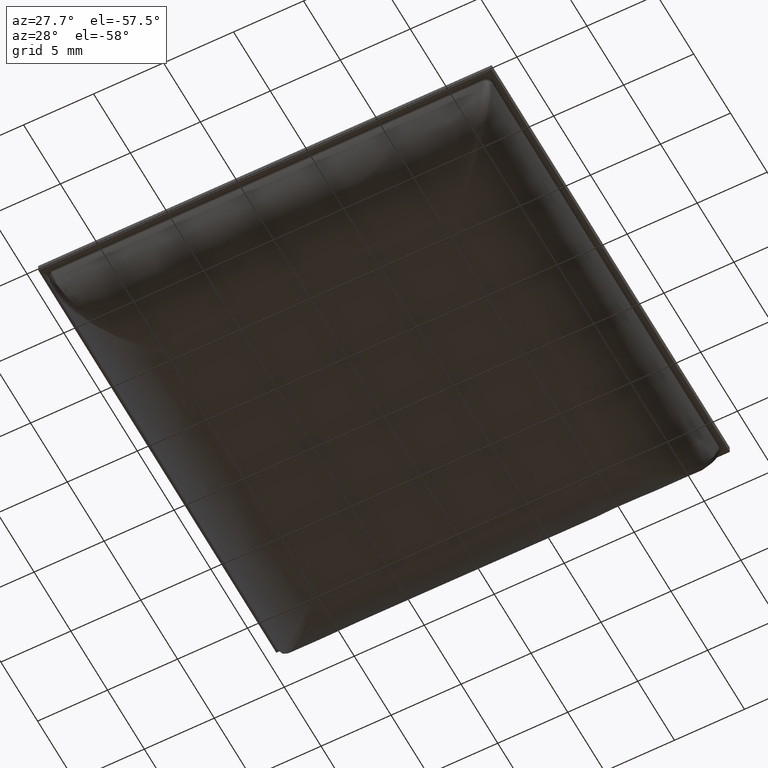
[diagram: clean part render]
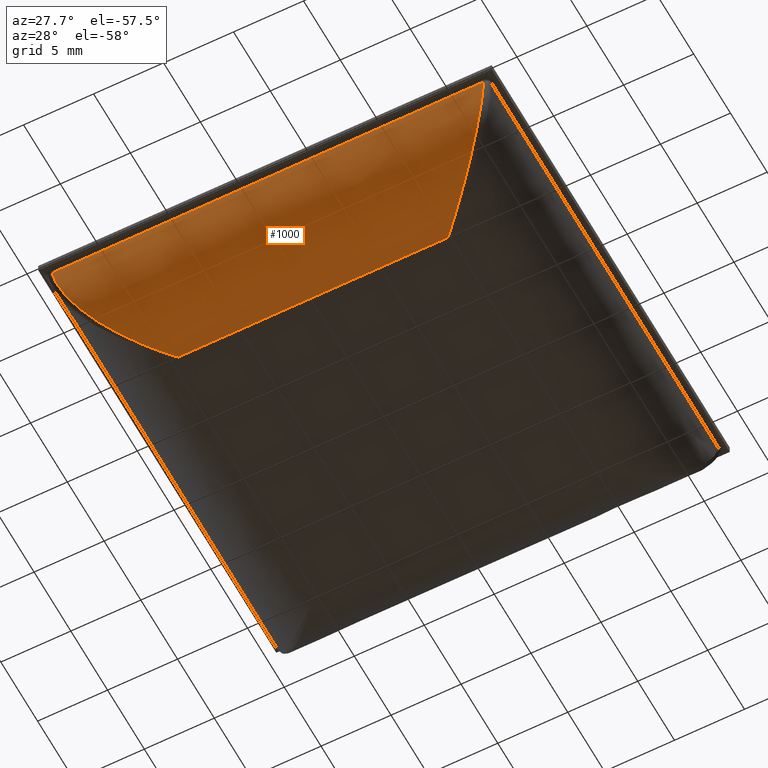
[diagram: same view with one face highlighted and labeled with its STEP entity id]
A machine part, auxiliary view. The second image highlights one B-rep face of the part: STEP entity #1000.
In plain terms, the highlighted face is a freeform B-spline surface patch.
Its self-contained STEP definition (entity closure, byte-faithful):
#327=CARTESIAN_POINT('',(15.417305255613901,-15.815050445656150,5.542616548341090));
#328=VERTEX_POINT('',#327);
#420=CARTESIAN_POINT('',(9.650000000000000,-9.650000000000000,0.0));
#421=VERTEX_POINT('',#420);
#422=CARTESIAN_POINT('',(9.649999999999999,-9.649999999999999,0.0));
#423=CARTESIAN_POINT('',(14.864422211748701,-15.224037536696898,0.0));
#424=CARTESIAN_POINT('',(15.417305255613901,-15.815050445656150,5.542616548341090));
#432=(BOUNDED_CURVE()B_SPLINE_CURVE(2,(#422,#423,#424),.UNSPECIFIED.,.F.,.U.)CURVE()GEOMETRIC_REPRESENTATION_ITEM()QUASI_UNIFORM_CURVE()RATIONAL_B_SPLINE_CURVE((1.0,0.743649644986526,1.0))REPRESENTATION_ITEM(''));
#433=EDGE_CURVE('',#421,#328,#432,.T.);
#546=CARTESIAN_POINT('',(-15.417305255613901,-15.815050445656150,5.542616548341090));
#547=VERTEX_POINT('',#546);
#624=CARTESIAN_POINT('',(-9.650000000000000,-9.650000000000000,0.0));
#625=VERTEX_POINT('',#624);
#639=CARTESIAN_POINT('',(-15.417305255613901,-15.815050445656150,5.542616548341090));
#640=CARTESIAN_POINT('',(-14.864422211748710,-15.224037536696892,0.0));
#641=CARTESIAN_POINT('',(-9.650000000000002,-9.650000000000002,0.0));
#649=(BOUNDED_CURVE()B_SPLINE_CURVE(2,(#639,#640,#641),.UNSPECIFIED.,.F.,.U.)CURVE()GEOMETRIC_REPRESENTATION_ITEM()QUASI_UNIFORM_CURVE()RATIONAL_B_SPLINE_CURVE((1.0,0.743649644986526,1.0))REPRESENTATION_ITEM(''));
#650=EDGE_CURVE('',#547,#625,#649,.T.);
#938=CARTESIAN_POINT('',(15.417305255613901,-15.815050445656150,5.542616548341090));
#939=CARTESIAN_POINT('',(-15.417305255613901,-15.815050445656150,5.542616548341090));
#940=QUASI_UNIFORM_CURVE('',1,(#938,#939),.UNSPECIFIED.,.F.,.U.);
#941=EDGE_CURVE('',#328,#547,#940,.T.);
#976=CARTESIAN_POINT('',(16.188170518394600,-15.830887469145390,5.713553606487365));
#977=CARTESIAN_POINT('',(-16.207442149964120,-15.830887469145390,5.713553606487365));
#978=CARTESIAN_POINT('',(16.188170518394593,-15.350219010258121,-0.393918242355888));
#979=CARTESIAN_POINT('',(-16.207442149964113,-15.350219010258121,-0.393918242355888));
#980=CARTESIAN_POINT('',(16.188170518394600,-9.237439930036233,0.013741503245161));
#981=CARTESIAN_POINT('',(-16.207442149964120,-9.237439930036233,0.013741503245161));
#989=(BOUNDED_SURFACE()B_SPLINE_SURFACE(1,2,((#976,#978,#980),(#977,#979,#981)),.UNSPECIFIED.,.F.,.F.,.U.)B_SPLINE_SURFACE_WITH_KNOTS((2,2),(3,3),(0.0,32.395612668358723),(0.0,10.185793288056029),.UNSPECIFIED.)GEOMETRIC_REPRESENTATION_ITEM()RATIONAL_B_SPLINE_SURFACE(((1.0,0.709575351338497,0.995104471028858),(1.0,0.709575351338497,0.995104471028858)))REPRESENTATION_ITEM('')SURFACE());
#990=ORIENTED_EDGE('',*,*,#941,.T.);
#991=ORIENTED_EDGE('',*,*,#650,.T.);
#992=CARTESIAN_POINT('',(9.650000000000000,-9.650000000000000,0.0));
#993=CARTESIAN_POINT('',(-9.650000000000000,-9.650000000000000,0.0));
#994=QUASI_UNIFORM_CURVE('',1,(#992,#993),.UNSPECIFIED.,.F.,.U.);
#995=EDGE_CURVE('',#421,#625,#994,.T.);
#996=ORIENTED_EDGE('',*,*,#995,.F.);
#997=ORIENTED_EDGE('',*,*,#433,.T.);
#998=EDGE_LOOP('',(#990,#991,#996,#997));
#999=FACE_OUTER_BOUND('',#998,.T.);
#1000=ADVANCED_FACE('',(#999),#989,.T.);